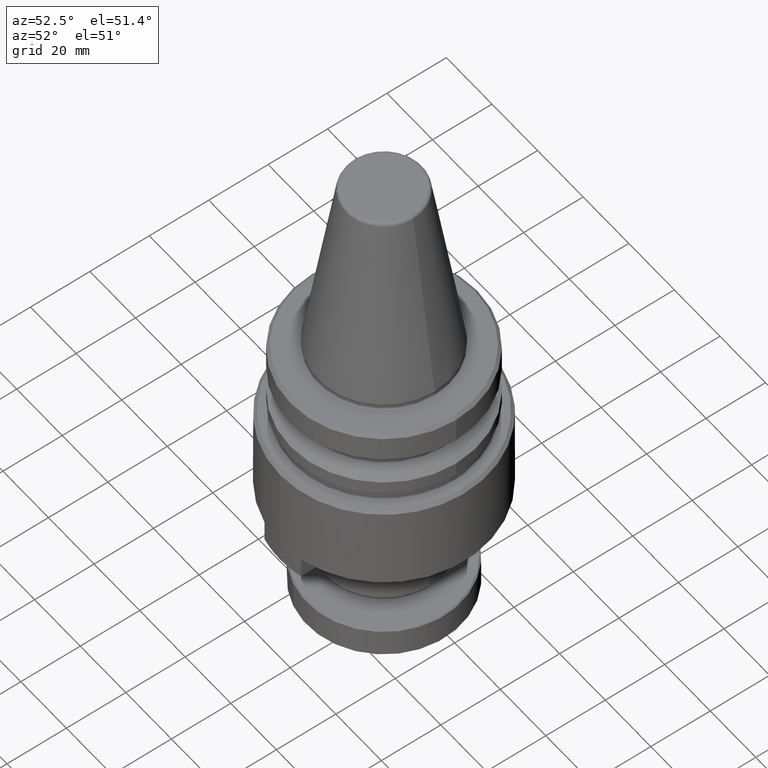
[diagram: clean part render]
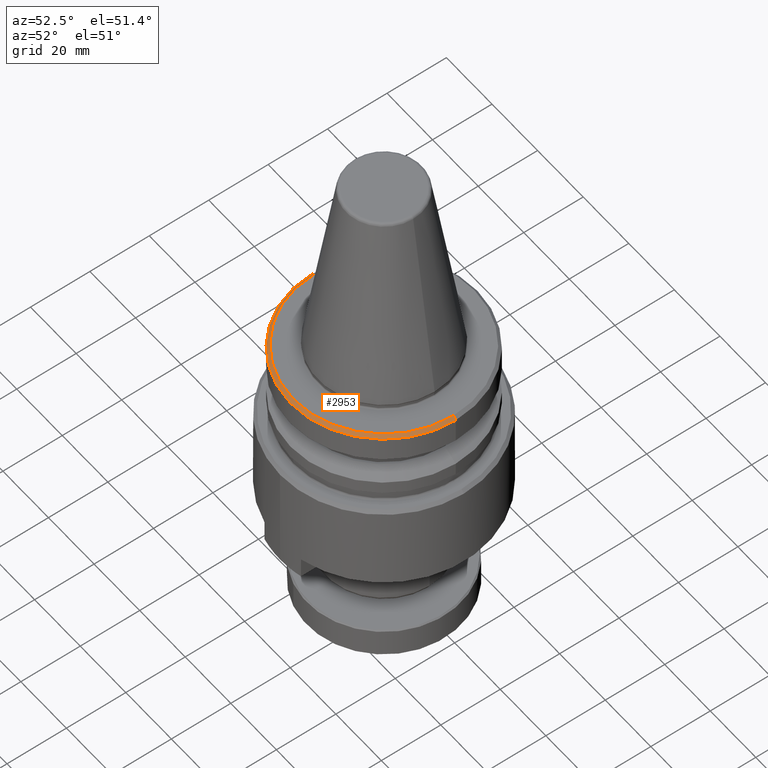
[diagram: same view with one face highlighted and labeled with its STEP entity id]
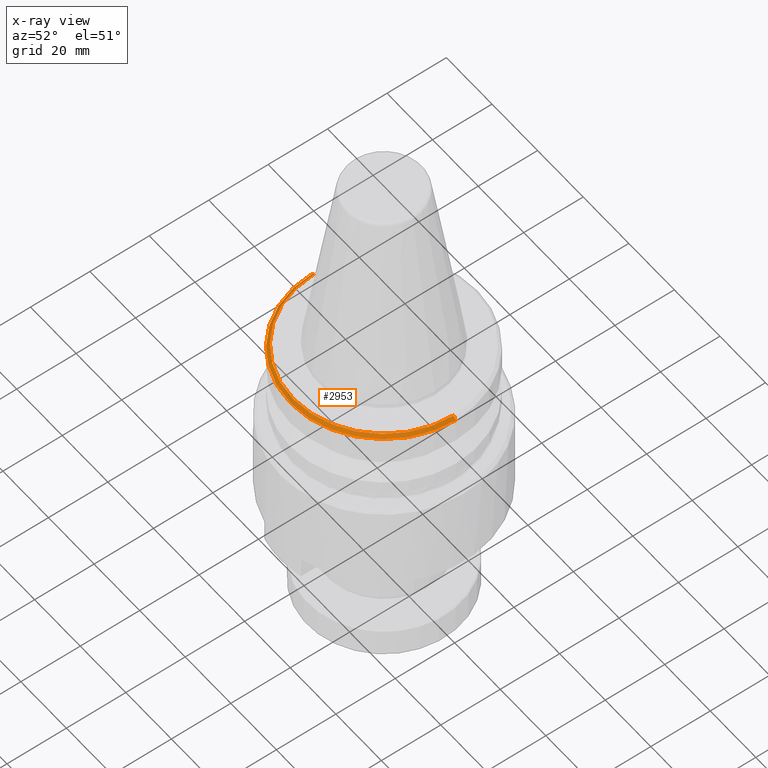
[diagram: x-ray of the same camera — body ghosted, the highlighted face saturated]
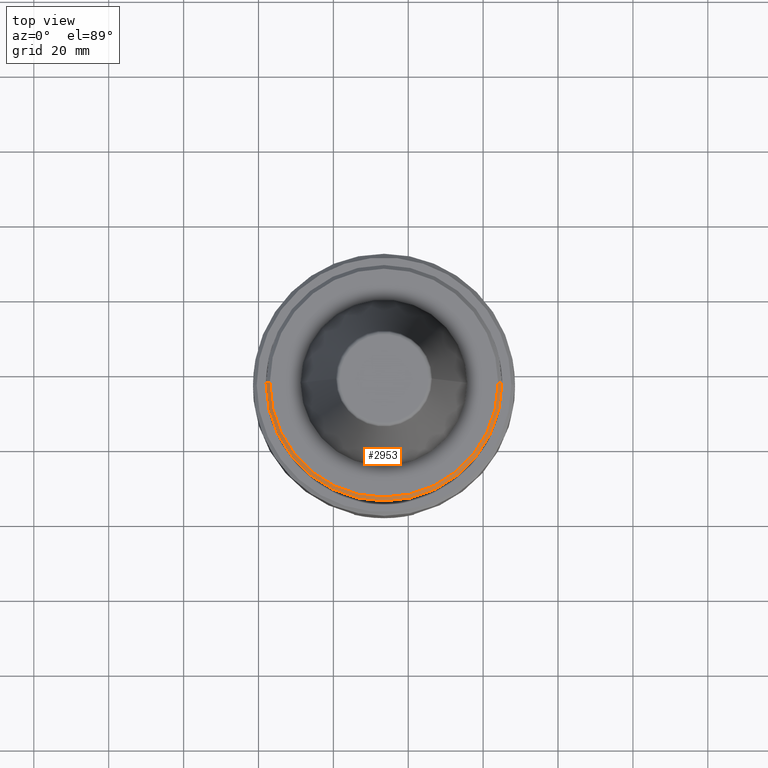
[diagram: same view with one face highlighted and labeled with its STEP entity id]
A machine part, auxiliary view. The second image highlights one B-rep face of the part: STEP entity #2953.
The next image is the same camera in x-ray: the body ghosted, the highlighted face saturated — about 0% of this face is hidden behind the body in this view.
A second angle (top view) of the same face is appended — the face is thin or edge-on in the first view.
In plain terms, the highlighted conical surface has half-angle 45 deg.
Its self-contained STEP definition (entity closure, byte-faithful):
#56 = LINE ( 'NONE', #1611, #102 ) ;
#96 = AXIS2_PLACEMENT_3D ( 'NONE', #2523, #2332, #2203 ) ;
#102 = VECTOR ( 'NONE', #1624, 1000.000000000000000 ) ;
#325 = CARTESIAN_POINT ( 'NONE',  ( 105.0217116575647800, 96.54903105188329000, 101.6951923962938600 ) ) ;
#430 = VERTEX_POINT ( 'NONE', #498 ) ;
#460 = ORIENTED_EDGE ( 'NONE', *, *, #691, .T. ) ;
#498 = CARTESIAN_POINT ( 'NONE',  ( 42.02171165756797700, 96.54903105188329000, 101.6951923962938600 ) ) ;
#570 = DIRECTION ( 'NONE',  ( -1.000000000000000000, 0.0000000000000000000, 0.0000000000000000000 ) ) ;
#572 = DIRECTION ( 'NONE',  ( -0.0000000000000000000, -0.0000000000000000000, -1.000000000000000000 ) ) ;
#582 = ORIENTED_EDGE ( 'NONE', *, *, #981, .T. ) ;
#615 = CARTESIAN_POINT ( 'NONE',  ( 73.52171165756638500, 96.54903105188329000, 102.6951923962939800 ) ) ;
#627 = LINE ( 'NONE', #2590, #1405 ) ;
#650 = AXIS2_PLACEMENT_3D ( 'NONE', #3056, #1577, #3306 ) ;
#654 = CARTESIAN_POINT ( 'NONE',  ( 104.0217116575646800, 96.54903105188329000, 102.6951923962939800 ) ) ;
#660 = EDGE_CURVE ( 'NONE', #3118, #430, #1218, .T. ) ;
#691 = EDGE_CURVE ( 'NONE', #2471, #430, #627, .T. ) ;
#708 = VERTEX_POINT ( 'NONE', #654 ) ;
#801 = FACE_OUTER_BOUND ( 'NONE', #3129, .T. ) ;
#883 = CONICAL_SURFACE ( 'NONE', #3299, 30.49999999999830500, 0.7853981633974415100 ) ;
#981 = EDGE_CURVE ( 'NONE', #708, #2471, #1169, .T. ) ;
#1169 = CIRCLE ( 'NONE', #650, 30.49999999999830500 ) ;
#1218 = CIRCLE ( 'NONE', #96, 31.49999999999840500 ) ;
#1405 = VECTOR ( 'NONE', #2247, 1000.000000000000000 ) ;
#1565 = CARTESIAN_POINT ( 'NONE',  ( 43.02171165756807600, 96.54903105188329000, 102.6951923962939800 ) ) ;
#1577 = DIRECTION ( 'NONE',  ( -0.0000000000000000000, -0.0000000000000000000, -1.000000000000000000 ) ) ;
#1611 = CARTESIAN_POINT ( 'NONE',  ( 104.0217116575646800, 96.54903105188329000, 102.6951923962939800 ) ) ;
#1624 = DIRECTION ( 'NONE',  ( 0.7071067811865426900, 8.659560562354873700E-017, -0.7071067811865523500 ) ) ;
#1826 = ORIENTED_EDGE ( 'NONE', *, *, #660, .F. ) ;
#2203 = DIRECTION ( 'NONE',  ( -1.000000000000000000, 0.0000000000000000000, 0.0000000000000000000 ) ) ;
#2247 = DIRECTION ( 'NONE',  ( -0.7071067811865426900, 0.0000000000000000000, -0.7071067811865523500 ) ) ;
#2332 = DIRECTION ( 'NONE',  ( -0.0000000000000000000, -0.0000000000000000000, -1.000000000000000000 ) ) ;
#2453 = EDGE_CURVE ( 'NONE', #708, #3118, #56, .T. ) ;
#2471 = VERTEX_POINT ( 'NONE', #1565 ) ;
#2523 = CARTESIAN_POINT ( 'NONE',  ( 73.52171165756638500, 96.54903105188329000, 101.6951923962938600 ) ) ;
#2590 = CARTESIAN_POINT ( 'NONE',  ( 43.02171165756807600, 96.54903105188329000, 102.6951923962939800 ) ) ;
#2934 = ORIENTED_EDGE ( 'NONE', *, *, #2453, .F. ) ;
#2953 = ADVANCED_FACE ( 'NONE', ( #801 ), #883, .T. ) ;
#3056 = CARTESIAN_POINT ( 'NONE',  ( 73.52171165756638500, 96.54903105188329000, 102.6951923962939800 ) ) ;
#3118 = VERTEX_POINT ( 'NONE', #325 ) ;
#3129 = EDGE_LOOP ( 'NONE', ( #2934, #582, #460, #1826 ) ) ;
#3299 = AXIS2_PLACEMENT_3D ( 'NONE', #615, #572, #570 ) ;
#3306 = DIRECTION ( 'NONE',  ( -1.000000000000000000, 0.0000000000000000000, 0.0000000000000000000 ) ) ;